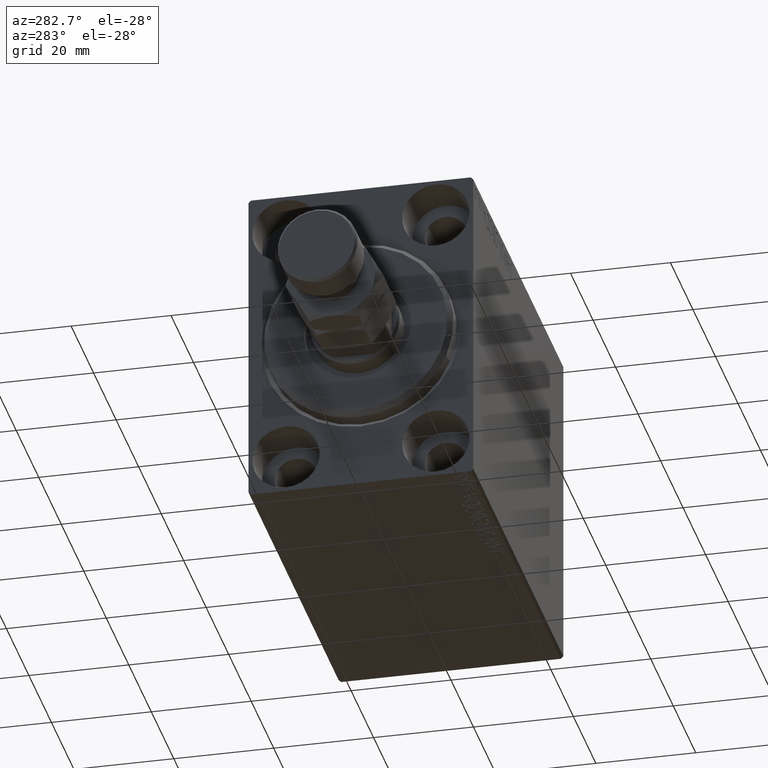
[diagram: clean part render]
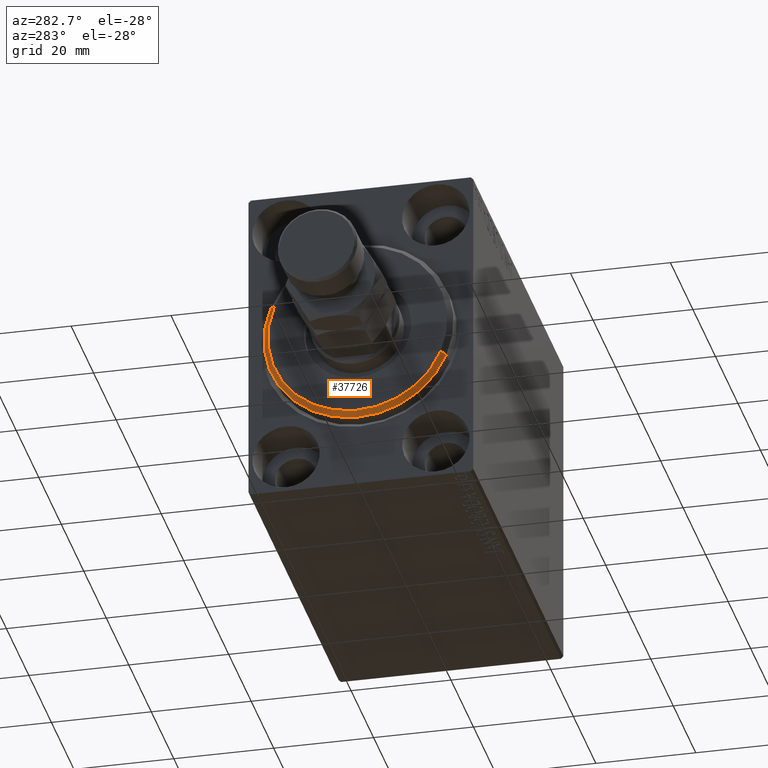
[diagram: same view with one face highlighted and labeled with its STEP entity id]
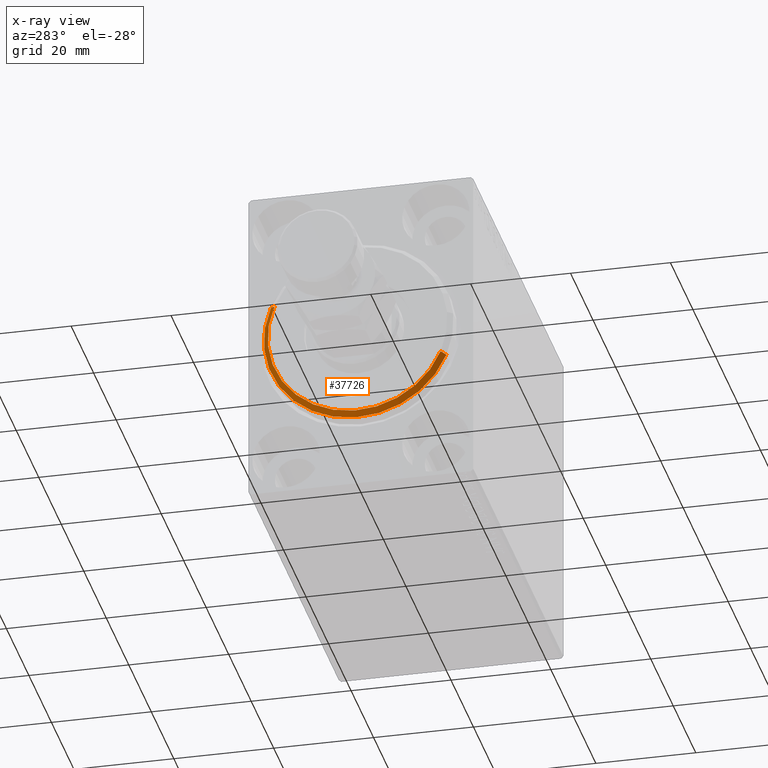
[diagram: x-ray of the same camera — body ghosted, the highlighted face saturated]
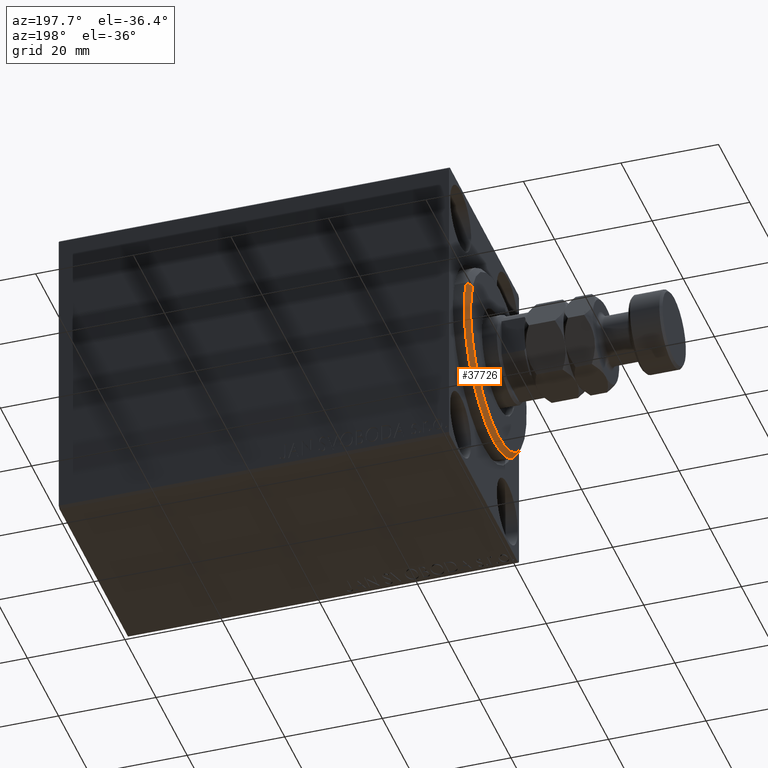
[diagram: same view with one face highlighted and labeled with its STEP entity id]
A machine part, auxiliary view. The second image highlights one B-rep face of the part: STEP entity #37726.
The next image is the same camera in x-ray: the body ghosted, the highlighted face saturated — about 0% of this face is hidden behind the body in this view.
A second angle (auxiliary view) of the same face is appended — the face is thin or edge-on in the first view.
In plain terms, the highlighted conical surface has half-angle 45 deg.
Its self-contained STEP definition (entity closure, byte-faithful):
#1207 = DIRECTION ( 'NONE',  ( 0.000000000000000000, 0.000000000000000000, -1.000000000000000000 ) ) ;
#2761 = EDGE_LOOP ( 'NONE', ( #3279, #23847, #30146, #22619 ) ) ;
#2939 = LINE ( 'NONE', #16927, #15850 ) ;
#3279 = ORIENTED_EDGE ( 'NONE', *, *, #7768, .F. ) ;
#3644 = DIRECTION ( 'NONE',  ( 0.000000000000000000, 0.000000000000000000, -1.000000000000000000 ) ) ;
#4670 = DIRECTION ( 'NONE',  ( -1.000000000000000000, 0.000000000000000000, 0.000000000000000000 ) ) ;
#4686 = VERTEX_POINT ( 'NONE', #4733 ) ;
#4733 = CARTESIAN_POINT ( 'NONE',  ( 3.000000000000000000, 2.265596578422603002E-15, -17.99999999999999645 ) ) ;
#5704 = AXIS2_PLACEMENT_3D ( 'NONE', #36353, #4670, #1207 ) ;
#7577 = VERTEX_POINT ( 'NONE', #35351 ) ;
#7768 = EDGE_CURVE ( 'NONE', #4686, #7577, #44717, .T. ) ;
#8932 = CARTESIAN_POINT ( 'NONE',  ( 3.000000000000000000, 2.204364238465235033E-15, -17.99999999999999645 ) ) ;
#9430 = FACE_OUTER_BOUND ( 'NONE', #2761, .T. ) ;
#10081 = CARTESIAN_POINT ( 'NONE',  ( 1.999999999999992228, 0.000000000000000000, 19.00000000000000000 ) ) ;
#10116 = VERTEX_POINT ( 'NONE', #10081 ) ;
#11580 = CIRCLE ( 'NONE', #5704, 19.00000000000000000 ) ;
#11589 = CARTESIAN_POINT ( 'NONE',  ( 3.000000000000000000, 0.000000000000000000, 0.000000000000000000 ) ) ;
#13161 = CONICAL_SURFACE ( 'NONE', #38870, 17.99999999999999645, 0.7853981633974466137 ) ;
#15578 = DIRECTION ( 'NONE',  ( -0.7071067811865487940, 8.659560562354918067E-17, -0.7071067811865463515 ) ) ;
#15850 = VECTOR ( 'NONE', #30953, 1000.000000000000000 ) ;
#16927 = CARTESIAN_POINT ( 'NONE',  ( 3.000000000000000000, 0.000000000000000000, 17.99999999999999645 ) ) ;
#17901 = CARTESIAN_POINT ( 'NONE',  ( 1.999999999999992228, 2.326828918379970970E-15, -19.00000000000000000 ) ) ;
#18283 = VECTOR ( 'NONE', #15578, 1000.000000000000000 ) ;
#20662 = CARTESIAN_POINT ( 'NONE',  ( 3.000000000000000000, 0.000000000000000000, 0.000000000000000000 ) ) ;
#21925 = DIRECTION ( 'NONE',  ( -1.000000000000000000, 0.000000000000000000, 0.000000000000000000 ) ) ;
#22619 = ORIENTED_EDGE ( 'NONE', *, *, #27574, .F. ) ;
#23847 = ORIENTED_EDGE ( 'NONE', *, *, #37011, .T. ) ;
#24739 = DIRECTION ( 'NONE',  ( 1.000000000000000000, -0.000000000000000000, 0.000000000000000000 ) ) ;
#25610 = AXIS2_PLACEMENT_3D ( 'NONE', #20662, #24739, #3644 ) ;
#27574 = EDGE_CURVE ( 'NONE', #7577, #10116, #2939, .T. ) ;
#29256 = DIRECTION ( 'NONE',  ( 0.000000000000000000, 0.000000000000000000, 1.000000000000000000 ) ) ;
#30146 = ORIENTED_EDGE ( 'NONE', *, *, #33346, .F. ) ;
#30953 = DIRECTION ( 'NONE',  ( -0.7071067811865487940, 0.000000000000000000, 0.7071067811865463515 ) ) ;
#33346 = EDGE_CURVE ( 'NONE', #10116, #37820, #11580, .T. ) ;
#33501 = LINE ( 'NONE', #8932, #18283 ) ;
#35351 = CARTESIAN_POINT ( 'NONE',  ( 3.000000000000000000, 0.000000000000000000, 17.99999999999999645 ) ) ;
#36353 = CARTESIAN_POINT ( 'NONE',  ( 1.999999999999992228, 0.000000000000000000, 0.000000000000000000 ) ) ;
#37011 = EDGE_CURVE ( 'NONE', #4686, #37820, #33501, .T. ) ;
#37726 = ADVANCED_FACE ( 'NONE', ( #9430 ), #13161, .T. ) ;
#37820 = VERTEX_POINT ( 'NONE', #17901 ) ;
#38870 = AXIS2_PLACEMENT_3D ( 'NONE', #11589, #21925, #29256 ) ;
#44717 = CIRCLE ( 'NONE', #25610, 17.99999999999999645 ) ;